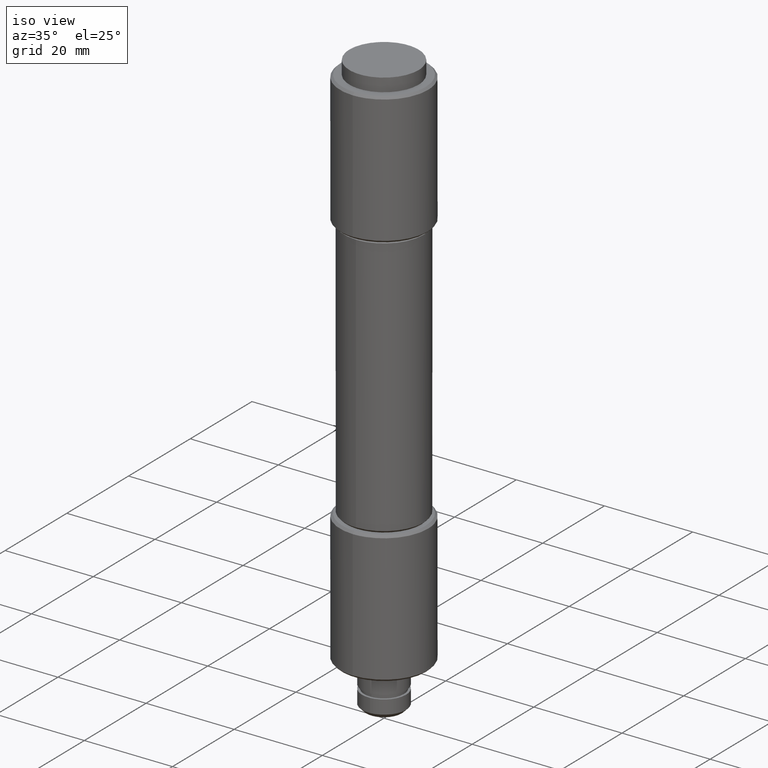
[diagram: clean part render]
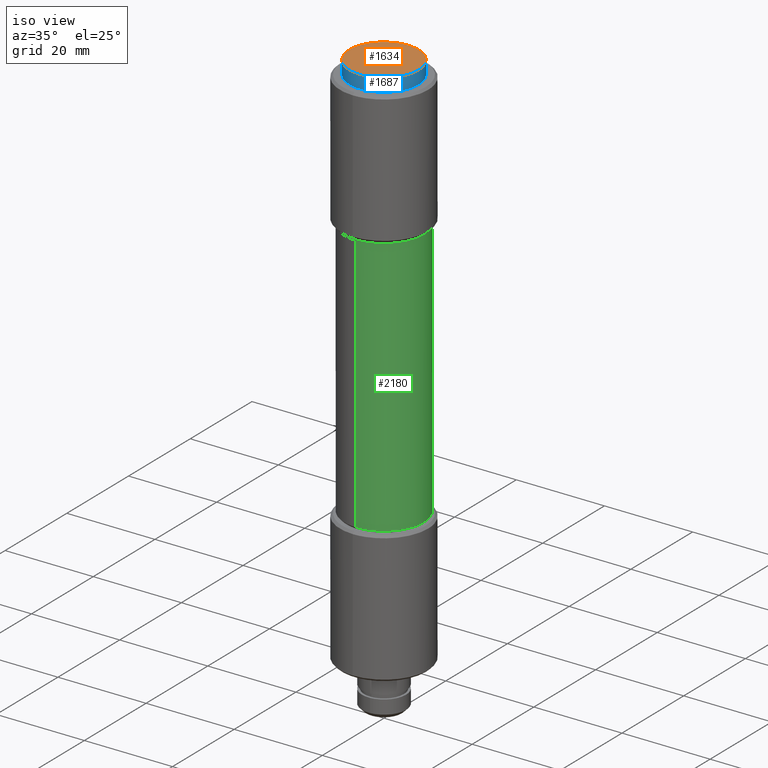
[diagram: same view with three faces highlighted in distinct colors, each labeled with its STEP entity id]
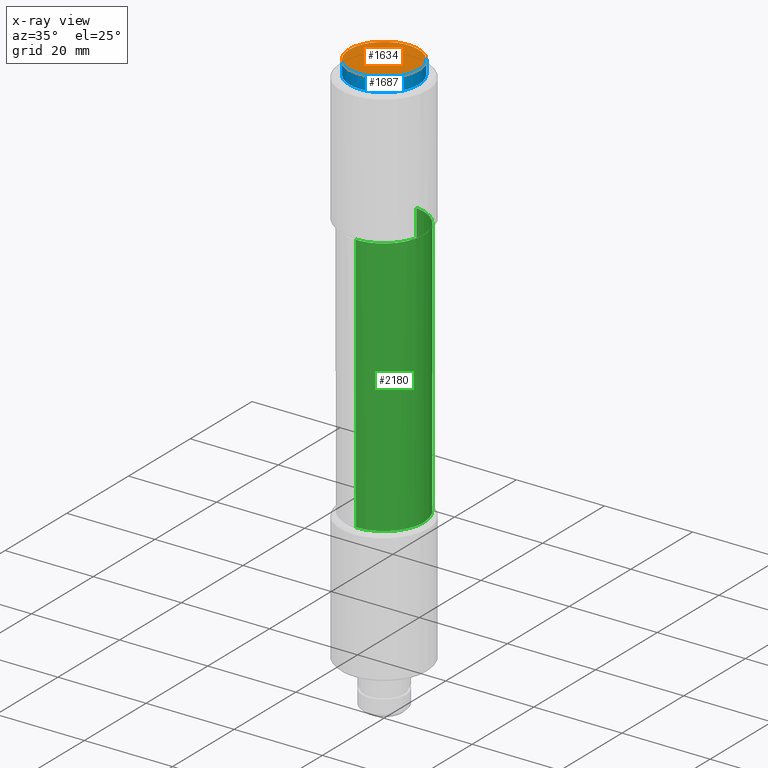
[diagram: x-ray of the same camera — body ghosted, the three highlighted faces saturated]
A machine part, iso view with three faces highlighted in distinct colors.
The next image is the same camera in x-ray (body ghosted, the three faces saturated) — at least one of them is partly hidden behind the body in this view.
Their STEP definitions:

[orange] entity #1634 — the highlighted face is a freeform B-spline surface patch.
#1593=CARTESIAN_POINT('',(-8.643141905471634,-8.643141905471518,133.0));
#1594=CARTESIAN_POINT('',(8.643142186499764,-8.643141905471518,133.0));
#1595=CARTESIAN_POINT('',(-8.643141905471634,8.643142186499649,133.0));
#1596=CARTESIAN_POINT('',(8.643142186499764,8.643142186499649,133.0));
#1597=B_SPLINE_SURFACE_WITH_KNOTS('',1,1,((#1593,#1595),(#1594,#1596)),.UNSPECIFIED.,.F.,.F.,.U.,(2,2),(2,2),(0.0,17.286284091971400),(0.0,17.286284091971169),.UNSPECIFIED.);
#1598=CARTESIAN_POINT('',(7.858116000000000,0.0,133.0));
#1599=VERTEX_POINT('',#1598);
#1600=CARTESIAN_POINT('',(-7.858116000000000,0.0,133.0));
#1601=VERTEX_POINT('',#1600);
#1602=CARTESIAN_POINT('',(7.858116000000000,0.0,133.0));
#1603=CARTESIAN_POINT('',(7.858116000000000,-7.858116000000000,133.0));
#1604=CARTESIAN_POINT('',(0.0,-7.858116000000000,133.0));
#1605=CARTESIAN_POINT('',(-7.858116000000000,-7.858116000000000,133.0));
#1606=CARTESIAN_POINT('',(-7.858116000000000,0.0,133.0));
#1614=(BOUNDED_CURVE()B_SPLINE_CURVE(2,(#1602,#1603,#1604,#1605,#1606),.UNSPECIFIED.,.F.,.U.)B_SPLINE_CURVE_WITH_KNOTS((3,2,3),(0.500000000000000,0.750000000000000,1.0),.UNSPECIFIED.)CURVE()GEOMETRIC_REPRESENTATION_ITEM()RATIONAL_B_SPLINE_CURVE((1.0,0.707106781186547,1.0,0.707106781186547,1.0))REPRESENTATION_ITEM(''));
#1615=EDGE_CURVE('',#1599,#1601,#1614,.T.);
#1616=ORIENTED_EDGE('',*,*,#1615,.F.);
#1617=CARTESIAN_POINT('',(-7.858116000000000,0.0,133.0));
#1618=CARTESIAN_POINT('',(-7.858116000000000,7.858116000000000,133.0));
#1619=CARTESIAN_POINT('',(0.0,7.858116000000000,133.0));
#1620=CARTESIAN_POINT('',(7.858116000000000,7.858116000000000,133.0));
#1621=CARTESIAN_POINT('',(7.858116000000000,0.0,133.0));
#1629=(BOUNDED_CURVE()B_SPLINE_CURVE(2,(#1617,#1618,#1619,#1620,#1621),.UNSPECIFIED.,.F.,.U.)B_SPLINE_CURVE_WITH_KNOTS((3,2,3),(0.0,0.250000000000000,0.500000000000000),.UNSPECIFIED.)CURVE()GEOMETRIC_REPRESENTATION_ITEM()RATIONAL_B_SPLINE_CURVE((1.0,0.707106781186547,1.0,0.707106781186547,1.0))REPRESENTATION_ITEM(''));
#1630=EDGE_CURVE('',#1601,#1599,#1629,.T.);
#1631=ORIENTED_EDGE('',*,*,#1630,.F.);
#1632=EDGE_LOOP('',(#1616,#1631));
#1633=FACE_OUTER_BOUND('',#1632,.T.);
#1634=ADVANCED_FACE('',(#1633),#1597,.T.);

[blue] entity #1687 — the highlighted face is a freeform B-spline surface patch.
#1502=CARTESIAN_POINT('',(-7.858116822750860,0.0,130.0));
#1503=VERTEX_POINT('',#1502);
#1504=CARTESIAN_POINT('',(7.858116822750860,0.0,130.0));
#1505=VERTEX_POINT('',#1504);
#1506=CARTESIAN_POINT('',(-7.858116822750860,0.0,130.0));
#1507=CARTESIAN_POINT('',(-7.858116822750860,7.858116822750860,130.0));
#1508=CARTESIAN_POINT('',(0.0,7.858116822750860,130.0));
#1509=CARTESIAN_POINT('',(7.858116822750860,7.858116822750860,130.0));
#1510=CARTESIAN_POINT('',(7.858116822750860,0.0,130.0));
#1518=(BOUNDED_CURVE()B_SPLINE_CURVE(2,(#1506,#1507,#1508,#1509,#1510),.UNSPECIFIED.,.F.,.U.)B_SPLINE_CURVE_WITH_KNOTS((3,2,3),(0.0,0.250000000000000,0.500000000000000),.UNSPECIFIED.)CURVE()GEOMETRIC_REPRESENTATION_ITEM()RATIONAL_B_SPLINE_CURVE((1.0,0.707106781186547,1.0,0.707106781186547,1.0))REPRESENTATION_ITEM(''));
#1519=EDGE_CURVE('',#1503,#1505,#1518,.T.);
#1521=CARTESIAN_POINT('',(7.858116822750860,0.0,130.0));
#1522=CARTESIAN_POINT('',(7.858116822750860,-7.858116822750860,130.0));
#1523=CARTESIAN_POINT('',(0.0,-7.858116822750860,130.0));
#1524=CARTESIAN_POINT('',(-7.858116822750860,-7.858116822750860,130.0));
#1525=CARTESIAN_POINT('',(-7.858116822750860,0.0,130.0));
#1533=(BOUNDED_CURVE()B_SPLINE_CURVE(2,(#1521,#1522,#1523,#1524,#1525),.UNSPECIFIED.,.F.,.U.)B_SPLINE_CURVE_WITH_KNOTS((3,2,3),(0.500000000000000,0.750000000000000,1.0),.UNSPECIFIED.)CURVE()GEOMETRIC_REPRESENTATION_ITEM()RATIONAL_B_SPLINE_CURVE((1.0,0.707106781186547,1.0,0.707106781186547,1.0))REPRESENTATION_ITEM(''));
#1534=EDGE_CURVE('',#1505,#1503,#1533,.T.);
#1598=CARTESIAN_POINT('',(7.858116000000000,0.0,133.0));
#1599=VERTEX_POINT('',#1598);
#1600=CARTESIAN_POINT('',(-7.858116000000000,0.0,133.0));
#1601=VERTEX_POINT('',#1600);
#1602=CARTESIAN_POINT('',(7.858116000000000,0.0,133.0));
#1603=CARTESIAN_POINT('',(7.858116000000000,-7.858116000000000,133.0));
#1604=CARTESIAN_POINT('',(0.0,-7.858116000000000,133.0));
#1605=CARTESIAN_POINT('',(-7.858116000000000,-7.858116000000000,133.0));
#1606=CARTESIAN_POINT('',(-7.858116000000000,0.0,133.0));
#1614=(BOUNDED_CURVE()B_SPLINE_CURVE(2,(#1602,#1603,#1604,#1605,#1606),.UNSPECIFIED.,.F.,.U.)B_SPLINE_CURVE_WITH_KNOTS((3,2,3),(0.500000000000000,0.750000000000000,1.0),.UNSPECIFIED.)CURVE()GEOMETRIC_REPRESENTATION_ITEM()RATIONAL_B_SPLINE_CURVE((1.0,0.707106781186547,1.0,0.707106781186547,1.0))REPRESENTATION_ITEM(''));
#1615=EDGE_CURVE('',#1599,#1601,#1614,.T.);
#1617=CARTESIAN_POINT('',(-7.858116000000000,0.0,133.0));
#1618=CARTESIAN_POINT('',(-7.858116000000000,7.858116000000000,133.0));
#1619=CARTESIAN_POINT('',(0.0,7.858116000000000,133.0));
#1620=CARTESIAN_POINT('',(7.858116000000000,7.858116000000000,133.0));
#1621=CARTESIAN_POINT('',(7.858116000000000,0.0,133.0));
#1629=(BOUNDED_CURVE()B_SPLINE_CURVE(2,(#1617,#1618,#1619,#1620,#1621),.UNSPECIFIED.,.F.,.U.)B_SPLINE_CURVE_WITH_KNOTS((3,2,3),(0.0,0.250000000000000,0.500000000000000),.UNSPECIFIED.)CURVE()GEOMETRIC_REPRESENTATION_ITEM()RATIONAL_B_SPLINE_CURVE((1.0,0.707106781186547,1.0,0.707106781186547,1.0))REPRESENTATION_ITEM(''));
#1630=EDGE_CURVE('',#1601,#1599,#1629,.T.);
#1635=CARTESIAN_POINT('',(-4.830877027737656,4.830877027737651,135.662361623616250));
#1636=CARTESIAN_POINT('',(-4.473238067825415,5.964317423767215,134.761958997722100));
#1637=CARTESIAN_POINT('',(-1.948166182316824,7.792664729267284,133.309523809523820));
#1638=CARTESIAN_POINT('',(1.948166182316819,7.792664729267284,133.309523809523820));
#1639=CARTESIAN_POINT('',(4.473238067825409,5.964317423767215,134.761958997722100));
#1640=CARTESIAN_POINT('',(4.830877027737647,4.830877027737651,135.662361623616250));
#1641=CARTESIAN_POINT('',(-5.964317423767221,4.473238067825411,134.761958997722100));
#1642=CARTESIAN_POINT('',(-5.844498546950469,5.844498546950464,133.309523809523820));
#1643=CARTESIAN_POINT('',(-2.809372692096361,8.428118076289085,130.572961373390570));
#1644=CARTESIAN_POINT('',(2.809372692096362,8.428118076289085,130.572961373390570));
#1645=CARTESIAN_POINT('',(5.844498546950461,5.844498546950464,133.309523809523820));
#1646=CARTESIAN_POINT('',(5.964317423767211,4.473238067825411,134.761958997722100));
#1647=CARTESIAN_POINT('',(-7.792664729267289,1.948166182316821,133.309523809523820));
#1648=CARTESIAN_POINT('',(-8.428118076289085,2.809372692096362,130.572961373390570));
#1649=CARTESIAN_POINT('',(-5.035260286603474,5.035260286603486,123.500000000000000));
#1650=CARTESIAN_POINT('',(5.035260286603493,5.035260286603486,123.500000000000000));
#1651=CARTESIAN_POINT('',(8.428118076289085,2.809372692096362,130.572961373390570));
#1652=CARTESIAN_POINT('',(7.792664729267284,1.948166182316821,133.309523809523820));
#1653=CARTESIAN_POINT('',(-7.792664729267289,-1.948166182316822,133.309523809523820));
#1654=CARTESIAN_POINT('',(-8.428118076289085,-2.809372692096361,130.572961373390570));
#1655=CARTESIAN_POINT('',(-5.035260286603474,-5.035260286603481,123.500000000000000));
#1656=CARTESIAN_POINT('',(5.035260286603493,-5.035260286603481,123.500000000000000));
#1657=CARTESIAN_POINT('',(8.428118076289085,-2.809372692096361,130.572961373390570));
#1658=CARTESIAN_POINT('',(7.792664729267284,-1.948166182316822,133.309523809523820));
#1659=CARTESIAN_POINT('',(-5.964317423767221,-4.473238067825411,134.761958997722100));
#1660=CARTESIAN_POINT('',(-5.844498546950469,-5.844498546950464,133.309523809523820));
#1661=CARTESIAN_POINT('',(-2.809372692096361,-8.428118076289085,130.572961373390570));
#1662=CARTESIAN_POINT('',(2.809372692096362,-8.428118076289085,130.572961373390570));
#1663=CARTESIAN_POINT('',(5.844498546950461,-5.844498546950464,133.309523809523820));
#1664=CARTESIAN_POINT('',(5.964317423767211,-4.473238067825411,134.761958997722100));
#1665=CARTESIAN_POINT('',(-4.830877027737656,-4.830877027737653,135.662361623616250));
#1666=CARTESIAN_POINT('',(-4.473238067825415,-5.964317423767217,134.761958997722100));
#1667=CARTESIAN_POINT('',(-1.948166182316824,-7.792664729267289,133.309523809523820));
#1668=CARTESIAN_POINT('',(1.948166182316819,-7.792664729267289,133.309523809523820));
#1669=CARTESIAN_POINT('',(4.473238067825409,-5.964317423767217,134.761958997722100));
#1670=CARTESIAN_POINT('',(4.830877027737647,-4.830877027737653,135.662361623616250));
#1678=(BOUNDED_SURFACE()B_SPLINE_SURFACE(2,2,((#1635,#1641,#1647,#1653,#1659,#1665),(#1636,#1642,#1648,#1654,#1660,#1666),(#1637,#1643,#1649,#1655,#1661,#1667),(#1638,#1644,#1650,#1656,#1662,#1668),(#1639,#1645,#1651,#1657,#1663,#1669),(#1640,#1646,#1652,#1658,#1664,#1670)),.UNSPECIFIED.,.F.,.F.,.U.)B_SPLINE_SURFACE_WITH_KNOTS((3,1,1,1,3),(3,1,1,1,3),(0.0,8.405570943928810,16.811141887857620,25.216712831786431,33.622283775715239),(0.0,8.405570943928806,16.811141887857609,25.216712831786420,33.622283775715232),.UNSPECIFIED.)GEOMETRIC_REPRESENTATION_ITEM()RATIONAL_B_SPLINE_SURFACE(((4.169230769230776,3.376923076923082,2.584615384615388,2.584615384615388,3.376923076923082,4.169230769230776),(3.376923076923082,2.584615384615388,1.792307692307694,1.792307692307694,2.584615384615388,3.376923076923082),(2.584615384615388,1.792307692307694,1.0,1.0,1.792307692307694,2.584615384615388),(2.584615384615388,1.792307692307694,1.0,1.0,1.792307692307694,2.584615384615388),(3.376923076923082,2.584615384615388,1.792307692307694,1.792307692307694,2.584615384615388,3.376923076923082),(4.169230769230776,3.376923076923082,2.584615384615388,2.584615384615388,3.376923076923082,4.169230769230776)))REPRESENTATION_ITEM('')SURFACE());
#1679=ORIENTED_EDGE('',*,*,#1519,.F.);
#1680=ORIENTED_EDGE('',*,*,#1534,.F.);
#1681=EDGE_LOOP('',(#1679,#1680));
#1682=FACE_OUTER_BOUND('',#1681,.T.);
#1683=ORIENTED_EDGE('',*,*,#1630,.T.);
#1684=ORIENTED_EDGE('',*,*,#1615,.T.);
#1685=EDGE_LOOP('',(#1683,#1684));
#1686=FACE_BOUND('',#1685,.T.);
#1687=ADVANCED_FACE('',(#1682,#1686),#1678,.T.);

[green] entity #2180 — the highlighted face is a freeform B-spline surface patch.
#1753=CARTESIAN_POINT('',(1.117152018767516,8.930395924423710,99.500000000000000));
#1754=VERTEX_POINT('',#1753);
#1811=CARTESIAN_POINT('',(-0.078538819597405,-8.999657307576452,99.500000000000114));
#1812=VERTEX_POINT('',#1811);
#1818=CARTESIAN_POINT('',(9.0,0.0,99.500000000000000));
#1819=VERTEX_POINT('',#1818);
#1820=CARTESIAN_POINT('',(9.0,0.0,99.500000000000000));
#1821=CARTESIAN_POINT('',(9.0,-9.0,99.500000000000014));
#1822=CARTESIAN_POINT('',(0.0,-9.0,99.500000000000000));
#1823=CARTESIAN_POINT('',(-0.039270157610435,-9.0,99.500000000000000));
#1824=CARTESIAN_POINT('',(-0.078538819597405,-8.999657307576452,99.500000000000114));
#1832=(BOUNDED_CURVE()B_SPLINE_CURVE(2,(#1820,#1821,#1822,#1823,#1824),.UNSPECIFIED.,.F.,.U.)B_SPLINE_CURVE_WITH_KNOTS((3,2,3),(0.500000000000000,0.750000000000000,0.751539894343760),.UNSPECIFIED.)CURVE()GEOMETRIC_REPRESENTATION_ITEM()RATIONAL_B_SPLINE_CURVE((1.0,0.707106781186547,1.0,0.998195901556094,0.996414028080104))REPRESENTATION_ITEM(''));
#1833=EDGE_CURVE('',#1819,#1812,#1832,.T.);
#1835=CARTESIAN_POINT('',(1.117152018767516,8.930395924423710,99.500000000000000));
#1836=CARTESIAN_POINT('',(9.0,7.944287401264108,99.500000000000000));
#1837=CARTESIAN_POINT('',(9.0,0.0,99.500000000000000));
#1845=(BOUNDED_CURVE()B_SPLINE_CURVE(2,(#1835,#1836,#1837),.UNSPECIFIED.,.F.,.U.)B_SPLINE_CURVE_WITH_KNOTS((3,3),(0.271473928972554,0.500000000000000),.UNSPECIFIED.)CURVE()GEOMETRIC_REPRESENTATION_ITEM()RATIONAL_B_SPLINE_CURVE((0.954005430271123,0.732265053895918,1.0))REPRESENTATION_ITEM(''));
#1846=EDGE_CURVE('',#1754,#1819,#1845,.T.);
#2036=CARTESIAN_POINT('',(1.117143820529244,8.930396949978485,40.499999999999993));
#2037=VERTEX_POINT('',#2036);
#2053=CARTESIAN_POINT('',(9.0,0.0,40.500000000000000));
#2054=VERTEX_POINT('',#2053);
#2055=CARTESIAN_POINT('',(9.0,0.0,40.500000000000000));
#2056=CARTESIAN_POINT('',(9.0,7.944294751127897,40.500000000000000));
#2057=CARTESIAN_POINT('',(1.117143820529244,8.930396949978485,40.499999999999993));
#2065=(BOUNDED_CURVE()B_SPLINE_CURVE(2,(#2055,#2056,#2057),.UNSPECIFIED.,.F.,.U.)B_SPLINE_CURVE_WITH_KNOTS((3,3),(0.500000000000000,0.728526225847886),.UNSPECIFIED.)CURVE()GEOMETRIC_REPRESENTATION_ITEM()RATIONAL_B_SPLINE_CURVE((1.0,0.732264872512490,0.954005730717967))REPRESENTATION_ITEM(''));
#2066=EDGE_CURVE('',#2054,#2037,#2065,.T.);
#2068=CARTESIAN_POINT('',(-0.078538819681901,-8.999657307575824,40.500000000000000));
#2069=VERTEX_POINT('',#2068);
#2070=CARTESIAN_POINT('',(-0.078538819681901,-8.999657307575824,40.500000000000000));
#2071=CARTESIAN_POINT('',(-0.039270157582861,-8.999999999999998,40.500000000000000));
#2072=CARTESIAN_POINT('',(0.0,-9.0,40.500000000000000));
#2073=CARTESIAN_POINT('',(9.0,-9.0,40.500000000000000));
#2074=CARTESIAN_POINT('',(9.0,0.0,40.500000000000000));
#2082=(BOUNDED_CURVE()B_SPLINE_CURVE(2,(#2070,#2071,#2072,#2073,#2074),.UNSPECIFIED.,.F.,.U.)B_SPLINE_CURVE_WITH_KNOTS((3,2,3),(0.248460105657320,0.250000000000000,0.500000000000000),.UNSPECIFIED.)CURVE()GEOMETRIC_REPRESENTATION_ITEM()RATIONAL_B_SPLINE_CURVE((0.996414028082601,0.998195901557359,1.0,0.707106781186547,1.0))REPRESENTATION_ITEM(''));
#2083=EDGE_CURVE('',#2069,#2054,#2082,.T.);
#2146=CARTESIAN_POINT('',(1.117152018718464,8.930395924429845,100.975000000000040));
#2147=CARTESIAN_POINT('',(9.069595474522000,7.935581323198988,100.975000000000020));
#2148=CARTESIAN_POINT('',(8.999657307577538,-0.078538819485365,100.974999999999990));
#2149=CARTESIAN_POINT('',(8.921118488092173,-9.078196127062903,100.975000000000020));
#2150=CARTESIAN_POINT('',(-0.078538819485365,-8.999657307577538,100.974999999999990));
#2151=CARTESIAN_POINT('',(1.117152018718464,8.930395924429845,38.988124999999989));
#2152=CARTESIAN_POINT('',(9.069595474522000,7.935581323198988,38.988124999999989));
#2153=CARTESIAN_POINT('',(8.999657307577538,-0.078538819485365,38.988124999999989));
#2154=CARTESIAN_POINT('',(8.921118488092173,-9.078196127062903,38.988124999999989));
#2155=CARTESIAN_POINT('',(-0.078538819485365,-8.999657307577538,38.988124999999989));
#2163=(BOUNDED_SURFACE()B_SPLINE_SURFACE(2,1,((#2146,#2151),(#2147,#2152),(#2148,#2153),(#2149,#2154),(#2150,#2155)),.UNSPECIFIED.,.F.,.F.,.U.)B_SPLINE_SURFACE_WITH_KNOTS((3,2,3),(2,2),(0.0,13.718753185796899,28.630441431228320),(0.0,61.986875000000047),.UNSPECIFIED.)GEOMETRIC_REPRESENTATION_ITEM()RATIONAL_B_SPLINE_SURFACE(((0.956886118190660,0.956886118190660),(0.730538238691624,0.730538238691624),(1.0,1.0),(0.707106781186548,0.707106781186548),(1.0,1.0)))REPRESENTATION_ITEM('')SURFACE());
#2164=ORIENTED_EDGE('',*,*,#1846,.T.);
#2165=ORIENTED_EDGE('',*,*,#1833,.T.);
#2166=CARTESIAN_POINT('',(-0.078538819597405,-8.999657307576452,99.500000000000114));
#2167=CARTESIAN_POINT('',(-0.078538819681901,-8.999657307575824,40.500000000000000));
#2168=QUASI_UNIFORM_CURVE('',1,(#2166,#2167),.UNSPECIFIED.,.F.,.U.);
#2169=EDGE_CURVE('',#1812,#2069,#2168,.T.);
#2170=ORIENTED_EDGE('',*,*,#2169,.T.);
#2171=ORIENTED_EDGE('',*,*,#2083,.T.);
#2172=ORIENTED_EDGE('',*,*,#2066,.T.);
#2173=CARTESIAN_POINT('',(1.117152018767516,8.930395924423710,99.500000000000000));
#2174=CARTESIAN_POINT('',(1.117143820529244,8.930396949978485,40.499999999999993));
#2175=QUASI_UNIFORM_CURVE('',1,(#2173,#2174),.UNSPECIFIED.,.F.,.U.);
#2176=EDGE_CURVE('',#1754,#2037,#2175,.T.);
#2177=ORIENTED_EDGE('',*,*,#2176,.F.);
#2178=EDGE_LOOP('',(#2164,#2165,#2170,#2171,#2172,#2177));
#2179=FACE_OUTER_BOUND('',#2178,.T.);
#2180=ADVANCED_FACE('',(#2179),#2163,.T.);